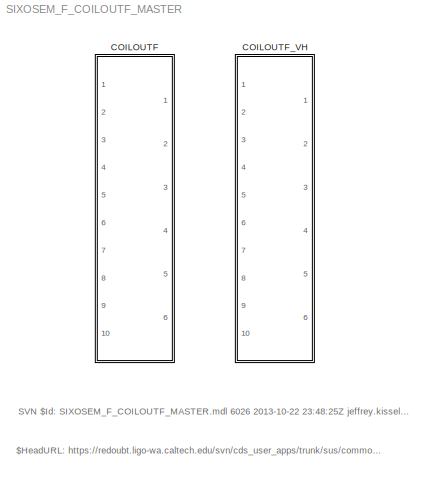
MODEL SIXOSEM_F_COILOUTF_MASTER
KIND library
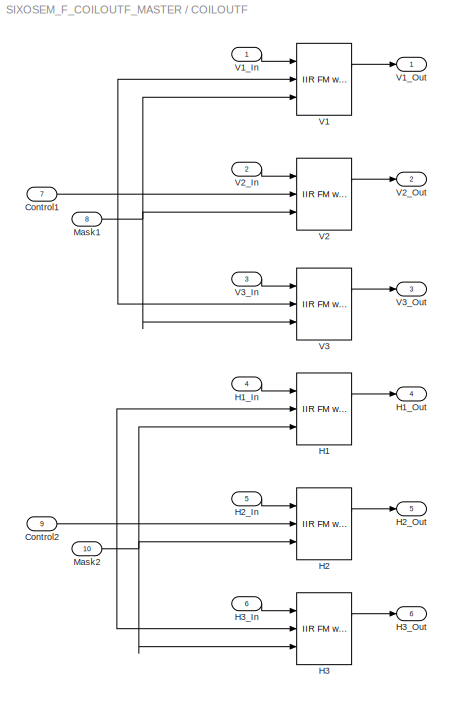
BLOCK [SubSystem] COILOUTF
  Ports = [10, 6]
  RequestExecContextInheritance = off
  SID = 1
  Variant = off
BLOCK [Inport] COILOUTF/Control1
  IconDisplay = Port number
  Port = 7
  SID = 58
BLOCK [Inport] COILOUTF/Control2
  IconDisplay = Port number
  Port = 9
  SID = 69
BLOCK [Reference] COILOUTF/H1  REF=cdsFiltCtrl/IIR FM with control
  AttributesFormatString = %<Tag>
  Description = cdsFiltCntrl is the standard IIR filter module (exactly the same as cdsFilt) but with added control data output 'Ctrl'. Filter module digital signal output appears on the first output, which is called 'Val'. 'Ctrl' output has a bit pattern encoding the state of filter's on/off switches (FM1 through FM10). The bit values are:\n                                                                        ...<+4621ch>  <repeated x12 — deduplicated; at blocks: H1, H2, H3, V1, V2, V3>
  Ports = [3, 2]
  SID = 66
  SourceBlock = cdsFiltCtrl/IIR FM with control
  SourceType = SubSystem
  Tag = cdsFiltCtrl
BLOCK [Inport] COILOUTF/H1_In
  IconDisplay = Port number
  Port = 4
  SID = 5
BLOCK [Outport] COILOUTF/H1_Out
  IconDisplay = Port number
  Port = 4
  SID = 42
BLOCK [Reference] COILOUTF/H2  REF=cdsFiltCtrl/IIR FM with control
  AttributesFormatString = %<Tag>
  Ports = [3, 2]
  SID = 67
  SourceBlock = cdsFiltCtrl/IIR FM with control
  SourceType = SubSystem
  Tag = cdsFiltCtrl
BLOCK [Inport] COILOUTF/H2_In
  IconDisplay = Port number
  Port = 5
  SID = 6
BLOCK [Outport] COILOUTF/H2_Out
  IconDisplay = Port number
  Port = 5
  SID = 43
BLOCK [Reference] COILOUTF/H3  REF=cdsFiltCtrl/IIR FM with control
  AttributesFormatString = %<Tag>
  Ports = [3, 2]
  SID = 68
  SourceBlock = cdsFiltCtrl/IIR FM with control
  SourceType = SubSystem
  Tag = cdsFiltCtrl
BLOCK [Inport] COILOUTF/H3_In
  IconDisplay = Port number
  Port = 6
  SID = 7
BLOCK [Outport] COILOUTF/H3_Out
  IconDisplay = Port number
  Port = 6
  SID = 44
BLOCK [Inport] COILOUTF/Mask1
  IconDisplay = Port number
  Port = 8
  SID = 59
BLOCK [Inport] COILOUTF/Mask2
  IconDisplay = Port number
  Port = 10
  SID = 70
BLOCK [Reference] COILOUTF/V1  REF=cdsFiltCtrl/IIR FM with control
  AttributesFormatString = %<Tag>
  Ports = [3, 2]
  SID = 62
  SourceBlock = cdsFiltCtrl/IIR FM with control
  SourceType = SubSystem
  Tag = cdsFiltCtrl
BLOCK [Inport] COILOUTF/V1_In
  IconDisplay = Port number
  SID = 2
BLOCK [Outport] COILOUTF/V1_Out
  IconDisplay = Port number
  SID = 39
BLOCK [Reference] COILOUTF/V2  REF=cdsFiltCtrl/IIR FM with control
  AttributesFormatString = %<Tag>
  Ports = [3, 2]
  SID = 64
  SourceBlock = cdsFiltCtrl/IIR FM with control
  SourceType = SubSystem
  Tag = cdsFiltCtrl
BLOCK [Inport] COILOUTF/V2_In
  IconDisplay = Port number
  Port = 2
  SID = 3
BLOCK [Outport] COILOUTF/V2_Out
  IconDisplay = Port number
  Port = 2
  SID = 40
BLOCK [Reference] COILOUTF/V3  REF=cdsFiltCtrl/IIR FM with control
  AttributesFormatString = %<Tag>
  Ports = [3, 2]
  SID = 65
  SourceBlock = cdsFiltCtrl/IIR FM with control
  SourceType = SubSystem
  Tag = cdsFiltCtrl
BLOCK [Inport] COILOUTF/V3_In
  IconDisplay = Port number
  Port = 3
  SID = 4
BLOCK [Outport] COILOUTF/V3_Out
  IconDisplay = Port number
  Port = 3
  SID = 41
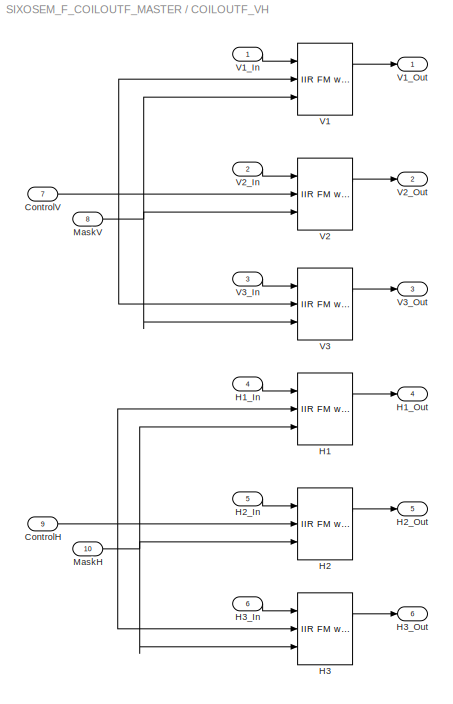
BLOCK [SubSystem] COILOUTF_VH
  Ports = [10, 6]
  RequestExecContextInheritance = off
  SID = 71
  Variant = off
BLOCK [Inport] COILOUTF_VH/ControlH
  IconDisplay = Port number
  Port = 9
  SID = 80
BLOCK [Inport] COILOUTF_VH/ControlV
  IconDisplay = Port number
  Port = 7
  SID = 78
BLOCK [Reference] COILOUTF_VH/H1  REF=cdsFiltCtrl/IIR FM with control
  AttributesFormatString = %<Tag>
  Ports = [3, 2]
  SID = 82
  SourceBlock = cdsFiltCtrl/IIR FM with control
  SourceType = SubSystem
  Tag = cdsFiltCtrl
BLOCK [Inport] COILOUTF_VH/H1_In
  IconDisplay = Port number
  Port = 4
  SID = 75
BLOCK [Outport] COILOUTF_VH/H1_Out
  IconDisplay = Port number
  Port = 4
  SID = 91
BLOCK [Reference] COILOUTF_VH/H2  REF=cdsFiltCtrl/IIR FM with control
  AttributesFormatString = %<Tag>
  Ports = [3, 2]
  SID = 83
  SourceBlock = cdsFiltCtrl/IIR FM with control
  SourceType = SubSystem
  Tag = cdsFiltCtrl
BLOCK [Inport] COILOUTF_VH/H2_In
  IconDisplay = Port number
  Port = 5
  SID = 76
BLOCK [Outport] COILOUTF_VH/H2_Out
  IconDisplay = Port number
  Port = 5
  SID = 92
BLOCK [Reference] COILOUTF_VH/H3  REF=cdsFiltCtrl/IIR FM with control
  AttributesFormatString = %<Tag>
  Ports = [3, 2]
  SID = 84
  SourceBlock = cdsFiltCtrl/IIR FM with control
  SourceType = SubSystem
  Tag = cdsFiltCtrl
BLOCK [Inport] COILOUTF_VH/H3_In
  IconDisplay = Port number
  Port = 6
  SID = 77
BLOCK [Outport] COILOUTF_VH/H3_Out
  IconDisplay = Port number
  Port = 6
  SID = 93
BLOCK [Inport] COILOUTF_VH/MaskH
  IconDisplay = Port number
  Port = 10
  SID = 81
BLOCK [Inport] COILOUTF_VH/MaskV
  IconDisplay = Port number
  Port = 8
  SID = 79
BLOCK [Reference] COILOUTF_VH/V1  REF=cdsFiltCtrl/IIR FM with control
  AttributesFormatString = %<Tag>
  Ports = [3, 2]
  SID = 85
  SourceBlock = cdsFiltCtrl/IIR FM with control
  SourceType = SubSystem
  Tag = cdsFiltCtrl
BLOCK [Inport] COILOUTF_VH/V1_In
  IconDisplay = Port number
  SID = 72
BLOCK [Outport] COILOUTF_VH/V1_Out
  IconDisplay = Port number
  SID = 88
BLOCK [Reference] COILOUTF_VH/V2  REF=cdsFiltCtrl/IIR FM with control
  AttributesFormatString = %<Tag>
  Ports = [3, 2]
  SID = 86
  SourceBlock = cdsFiltCtrl/IIR FM with control
  SourceType = SubSystem
  Tag = cdsFiltCtrl
BLOCK [Inport] COILOUTF_VH/V2_In
  IconDisplay = Port number
  Port = 2
  SID = 73
BLOCK [Outport] COILOUTF_VH/V2_Out
  IconDisplay = Port number
  Port = 2
  SID = 89
BLOCK [Reference] COILOUTF_VH/V3  REF=cdsFiltCtrl/IIR FM with control
  AttributesFormatString = %<Tag>
  Ports = [3, 2]
  SID = 87
  SourceBlock = cdsFiltCtrl/IIR FM with control
  SourceType = SubSystem
  Tag = cdsFiltCtrl
BLOCK [Inport] COILOUTF_VH/V3_In
  IconDisplay = Port number
  Port = 3
  SID = 74
BLOCK [Outport] COILOUTF_VH/V3_Out
  IconDisplay = Port number
  Port = 3
  SID = 90
ANNOTATION (root): $HeadURL: https://redoubt.ligo-wa.caltech.edu/svn/cds_user_apps/trunk/sus/common/models/SIXOSEM_F_COILOUTF_MASTER.mdl $
ANNOTATION (root): SVN $Id: SIXOSEM_F_COILOUTF_MASTER.mdl 6026 2013-10-22 23:48:25Z <email> $
NET COILOUTF/Control1:1 -> COILOUTF/V1:2, COILOUTF/V2:2, COILOUTF/V3:2
NET COILOUTF/Control2:1 -> COILOUTF/H1:2, COILOUTF/H2:2, COILOUTF/H3:2
LINE COILOUTF/H1:1 -> COILOUTF/H1_Out:1
LINE COILOUTF/H1_In:1 -> COILOUTF/H1:1
LINE COILOUTF/H2:1 -> COILOUTF/H2_Out:1
LINE COILOUTF/H2_In:1 -> COILOUTF/H2:1
LINE COILOUTF/H3:1 -> COILOUTF/H3_Out:1
LINE COILOUTF/H3_In:1 -> COILOUTF/H3:1
NET COILOUTF/Mask1:1 -> COILOUTF/V1:3, COILOUTF/V2:3, COILOUTF/V3:3
NET COILOUTF/Mask2:1 -> COILOUTF/H1:3, COILOUTF/H2:3, COILOUTF/H3:3
LINE COILOUTF/V1:1 -> COILOUTF/V1_Out:1
LINE COILOUTF/V1_In:1 -> COILOUTF/V1:1
LINE COILOUTF/V2:1 -> COILOUTF/V2_Out:1
LINE COILOUTF/V2_In:1 -> COILOUTF/V2:1
LINE COILOUTF/V3:1 -> COILOUTF/V3_Out:1
LINE COILOUTF/V3_In:1 -> COILOUTF/V3:1
NET COILOUTF_VH/ControlH:1 -> COILOUTF_VH/H1:2, COILOUTF_VH/H2:2, COILOUTF_VH/H3:2
NET COILOUTF_VH/ControlV:1 -> COILOUTF_VH/V1:2, COILOUTF_VH/V2:2, COILOUTF_VH/V3:2
LINE COILOUTF_VH/H1:1 -> COILOUTF_VH/H1_Out:1
LINE COILOUTF_VH/H1_In:1 -> COILOUTF_VH/H1:1
LINE COILOUTF_VH/H2:1 -> COILOUTF_VH/H2_Out:1
LINE COILOUTF_VH/H2_In:1 -> COILOUTF_VH/H2:1
LINE COILOUTF_VH/H3:1 -> COILOUTF_VH/H3_Out:1
LINE COILOUTF_VH/H3_In:1 -> COILOUTF_VH/H3:1
NET COILOUTF_VH/MaskH:1 -> COILOUTF_VH/H1:3, COILOUTF_VH/H2:3, COILOUTF_VH/H3:3
NET COILOUTF_VH/MaskV:1 -> COILOUTF_VH/V1:3, COILOUTF_VH/V2:3, COILOUTF_VH/V3:3
LINE COILOUTF_VH/V1:1 -> COILOUTF_VH/V1_Out:1
LINE COILOUTF_VH/V1_In:1 -> COILOUTF_VH/V1:1
LINE COILOUTF_VH/V2:1 -> COILOUTF_VH/V2_Out:1
LINE COILOUTF_VH/V2_In:1 -> COILOUTF_VH/V2:1
LINE COILOUTF_VH/V3:1 -> COILOUTF_VH/V3_Out:1
LINE COILOUTF_VH/V3_In:1 -> COILOUTF_VH/V3:1
note: NET lines group one-source signal fan-out (src -> all destinations, sorted); 1:1 wires keep LINE
